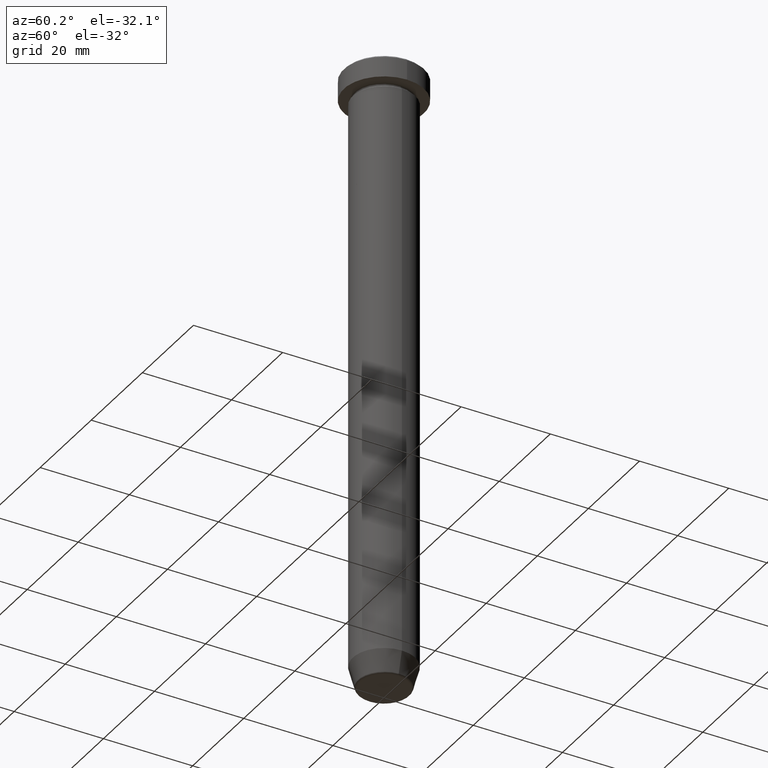
[diagram: clean part render]
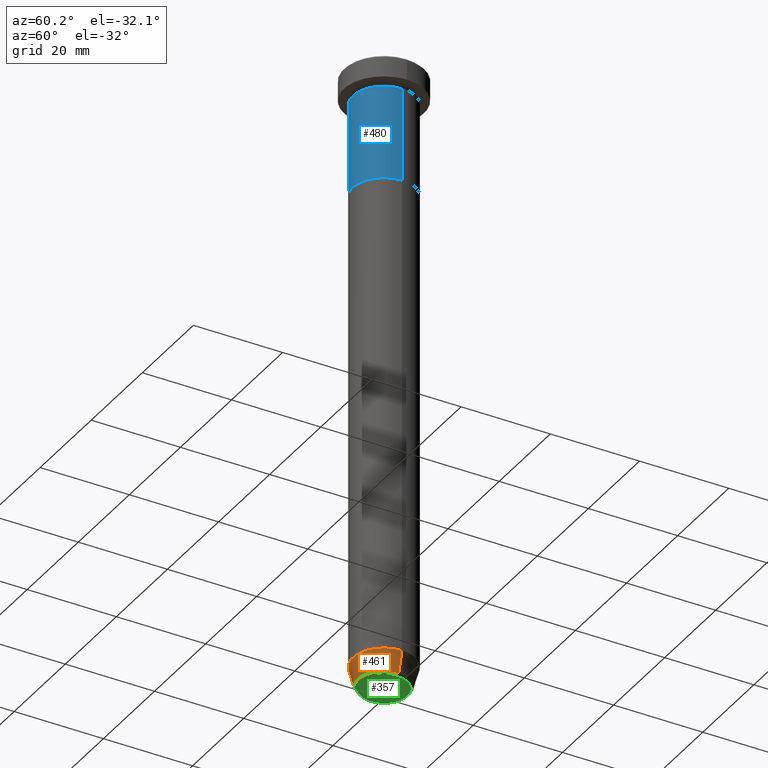
[diagram: same view with three faces highlighted in distinct colors, each labeled with its STEP entity id]
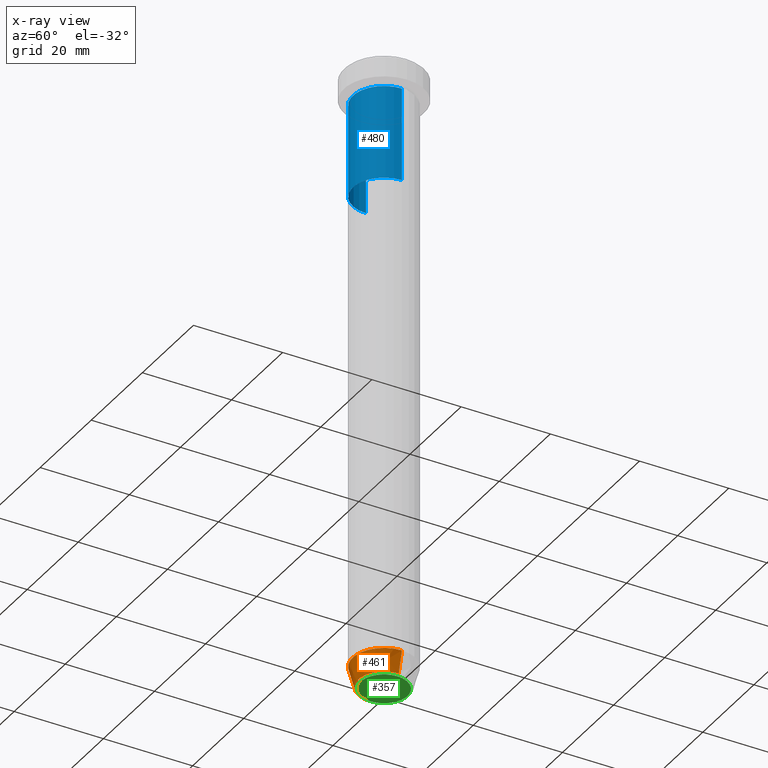
[diagram: x-ray of the same camera — body ghosted, the three highlighted faces saturated]
A machine part, auxiliary view with three faces highlighted in distinct colors.
The next image is the same camera in x-ray (body ghosted, the three faces saturated) — at least one of them is partly hidden behind the body in this view.
Their STEP definitions:

[orange] entity #461 — the highlighted conical surface has half-angle 15 deg.
#53 = DIRECTION ( 'NONE',  ( -1.000000000000000000, 0.000000000000000000, 0.000000000000000000 ) ) ;
#77 = VERTEX_POINT ( 'NONE', #559 ) ;
#79 = AXIS2_PLACEMENT_3D ( 'NONE', #122, #515, #53 ) ;
#82 = CARTESIAN_POINT ( 'NONE',  ( -7.000000000000000000, 8.572527594031473190E-16, -135.0000000000000000 ) ) ;
#90 = DIRECTION ( 'NONE',  ( -0.000000000000000000, -0.000000000000000000, 1.000000000000000000 ) ) ;
#100 = ORIENTED_EDGE ( 'NONE', *, *, #370, .F. ) ;
#122 = CARTESIAN_POINT ( 'NONE',  ( 0.000000000000000000, 0.000000000000000000, -139.6294095225512706 ) ) ;
#139 = EDGE_CURVE ( 'NONE', #77, #423, #512, .T. ) ;
#144 = CARTESIAN_POINT ( 'NONE',  ( 0.000000000000000000, 0.000000000000000000, -140.0000000000000000 ) ) ;
#146 = DIRECTION ( 'NONE',  ( 1.000000000000000000, 0.000000000000000000, 0.000000000000000000 ) ) ;
#149 = CARTESIAN_POINT ( 'NONE',  ( -5.660254037844381969, 6.931811989807004350E-16, -140.0000000000000000 ) ) ;
#180 = EDGE_LOOP ( 'NONE', ( #196, #248, #510, #100 ) ) ;
#181 = EDGE_CURVE ( 'NONE', #321, #77, #417, .T. ) ;
#193 = DIRECTION ( 'NONE',  ( 0.2588190451025213501, 0.000000000000000000, 0.9659258262890680902 ) ) ;
#196 = ORIENTED_EDGE ( 'NONE', *, *, #322, .F. ) ;
#220 = DIRECTION ( 'NONE',  ( 1.000000000000000000, 0.000000000000000000, 0.000000000000000000 ) ) ;
#248 = ORIENTED_EDGE ( 'NONE', *, *, #181, .T. ) ;
#267 = LINE ( 'NONE', #149, #317 ) ;
#273 = DIRECTION ( 'NONE',  ( -0.000000000000000000, -0.000000000000000000, 1.000000000000000000 ) ) ;
#314 = CARTESIAN_POINT ( 'NONE',  ( 5.660254037844381969, 0.000000000000000000, -140.0000000000000000 ) ) ;
#317 = VECTOR ( 'NONE', #588, 1000.000000000000000 ) ;
#321 = VERTEX_POINT ( 'NONE', #362 ) ;
#322 = EDGE_CURVE ( 'NONE', #321, #463, #267, .T. ) ;
#337 = VECTOR ( 'NONE', #193, 1000.000000000000000 ) ;
#349 = AXIS2_PLACEMENT_3D ( 'NONE', #447, #90, #220 ) ;
#362 = CARTESIAN_POINT ( 'NONE',  ( -5.759553456999436882, 7.812973149831951773E-16, -139.6294095225512706 ) ) ;
#363 = CONICAL_SURFACE ( 'NONE', #532, 5.660254037844381969, 0.2617993877991500740 ) ;
#370 = EDGE_CURVE ( 'NONE', #463, #423, #544, .T. ) ;
#378 = CARTESIAN_POINT ( 'NONE',  ( 7.000000000000000000, 0.000000000000000000, -135.0000000000000000 ) ) ;
#417 = CIRCLE ( 'NONE', #79, 5.759553456999436882 ) ;
#423 = VERTEX_POINT ( 'NONE', #378 ) ;
#447 = CARTESIAN_POINT ( 'NONE',  ( 0.000000000000000000, 0.000000000000000000, -135.0000000000000000 ) ) ;
#461 = ADVANCED_FACE ( 'NONE', ( #539 ), #363, .T. ) ;
#463 = VERTEX_POINT ( 'NONE', #82 ) ;
#510 = ORIENTED_EDGE ( 'NONE', *, *, #139, .T. ) ;
#512 = LINE ( 'NONE', #314, #337 ) ;
#515 = DIRECTION ( 'NONE',  ( -0.000000000000000000, -0.000000000000000000, 1.000000000000000000 ) ) ;
#532 = AXIS2_PLACEMENT_3D ( 'NONE', #144, #273, #146 ) ;
#539 = FACE_OUTER_BOUND ( 'NONE', #180, .T. ) ;
#544 = CIRCLE ( 'NONE', #349, 7.000000000000000000 ) ;
#559 = CARTESIAN_POINT ( 'NONE',  ( 5.759553456999436882, 0.000000000000000000, -139.6294095225512706 ) ) ;
#588 = DIRECTION ( 'NONE',  ( -0.2588190451025213501, 3.169619151431772337E-17, 0.9659258262890680902 ) ) ;

[blue] entity #480 — the highlighted cylindrical surface (edge-blend (fillet) strip) has radius 7 mm, axis along (-0, -0, 1).
#12 = DIRECTION ( 'NONE',  ( 1.000000000000000000, 0.000000000000000000, 0.000000000000000000 ) ) ;
#15 = AXIS2_PLACEMENT_3D ( 'NONE', #404, #309, #76 ) ;
#28 = DIRECTION ( 'NONE',  ( -0.000000000000000000, -0.000000000000000000, 1.000000000000000000 ) ) ;
#40 = EDGE_CURVE ( 'NONE', #351, #410, #380, .T. ) ;
#43 = VERTEX_POINT ( 'NONE', #201 ) ;
#52 = CARTESIAN_POINT ( 'NONE',  ( 0.000000000000000000, 0.000000000000000000, -27.00000000000000000 ) ) ;
#76 = DIRECTION ( 'NONE',  ( 1.000000000000000000, 0.000000000000000000, 0.000000000000000000 ) ) ;
#88 = FACE_OUTER_BOUND ( 'NONE', #554, .T. ) ;
#121 = EDGE_CURVE ( 'NONE', #351, #43, #579, .T. ) ;
#128 = VECTOR ( 'NONE', #28, 1000.000000000000000 ) ;
#135 = CARTESIAN_POINT ( 'NONE',  ( -7.000000000000000000, 8.572527594031473190E-16, 0.000000000000000000 ) ) ;
#201 = CARTESIAN_POINT ( 'NONE',  ( -7.000000000000000000, 8.572527594031473190E-16, -6.000000000000000000 ) ) ;
#231 = AXIS2_PLACEMENT_3D ( 'NONE', #491, #398, #358 ) ;
#245 = DIRECTION ( 'NONE',  ( -0.000000000000000000, -0.000000000000000000, 1.000000000000000000 ) ) ;
#252 = AXIS2_PLACEMENT_3D ( 'NONE', #52, #245, #12 ) ;
#306 = CARTESIAN_POINT ( 'NONE',  ( 7.000000000000000000, 0.000000000000000000, 0.000000000000000000 ) ) ;
#309 = DIRECTION ( 'NONE',  ( -0.000000000000000000, -0.000000000000000000, 1.000000000000000000 ) ) ;
#316 = CIRCLE ( 'NONE', #231, 7.000000000000000000 ) ;
#320 = ORIENTED_EDGE ( 'NONE', *, *, #40, .T. ) ;
#338 = ORIENTED_EDGE ( 'NONE', *, *, #432, .T. ) ;
#351 = VERTEX_POINT ( 'NONE', #504 ) ;
#353 = LINE ( 'NONE', #306, #128 ) ;
#354 = CYLINDRICAL_SURFACE ( 'NONE', #15, 7.000000000000000000 ) ;
#358 = DIRECTION ( 'NONE',  ( 1.000000000000000000, 0.000000000000000000, 0.000000000000000000 ) ) ;
#360 = CARTESIAN_POINT ( 'NONE',  ( 7.000000000000000000, 0.000000000000000000, -6.000000000000000000 ) ) ;
#380 = CIRCLE ( 'NONE', #252, 7.000000000000000000 ) ;
#386 = EDGE_CURVE ( 'NONE', #43, #455, #316, .T. ) ;
#391 = VECTOR ( 'NONE', #537, 1000.000000000000000 ) ;
#398 = DIRECTION ( 'NONE',  ( -0.000000000000000000, -0.000000000000000000, 1.000000000000000000 ) ) ;
#404 = CARTESIAN_POINT ( 'NONE',  ( 0.000000000000000000, 0.000000000000000000, 0.000000000000000000 ) ) ;
#410 = VERTEX_POINT ( 'NONE', #431 ) ;
#431 = CARTESIAN_POINT ( 'NONE',  ( 7.000000000000000000, 0.000000000000000000, -27.00000000000000000 ) ) ;
#432 = EDGE_CURVE ( 'NONE', #410, #455, #353, .T. ) ;
#455 = VERTEX_POINT ( 'NONE', #360 ) ;
#480 = ADVANCED_FACE ( 'NONE', ( #88 ), #354, .T. ) ;
#491 = CARTESIAN_POINT ( 'NONE',  ( 0.000000000000000000, 0.000000000000000000, -6.000000000000000000 ) ) ;
#499 = ORIENTED_EDGE ( 'NONE', *, *, #386, .F. ) ;
#504 = CARTESIAN_POINT ( 'NONE',  ( -7.000000000000000000, 8.572527594031473190E-16, -27.00000000000000000 ) ) ;
#537 = DIRECTION ( 'NONE',  ( -0.000000000000000000, -0.000000000000000000, 1.000000000000000000 ) ) ;
#554 = EDGE_LOOP ( 'NONE', ( #592, #320, #338, #499 ) ) ;
#579 = LINE ( 'NONE', #135, #391 ) ;
#592 = ORIENTED_EDGE ( 'NONE', *, *, #121, .F. ) ;

[green] entity #357 — the highlighted planar face has unit normal (0, -0, 1).
#4 = VERTEX_POINT ( 'NONE', #567 ) ;
#81 = EDGE_CURVE ( 'NONE', #315, #4, #208, .T. ) ;
#84 = PLANE ( 'NONE',  #137 ) ;
#120 = DIRECTION ( 'NONE',  ( 0.000000000000000000, 0.000000000000000000, -1.000000000000000000 ) ) ;
#137 = AXIS2_PLACEMENT_3D ( 'NONE', #185, #534, #538 ) ;
#176 = ORIENTED_EDGE ( 'NONE', *, *, #81, .T. ) ;
#182 = DIRECTION ( 'NONE',  ( 1.000000000000000000, 0.000000000000000000, 0.000000000000000000 ) ) ;
#185 = CARTESIAN_POINT ( 'NONE',  ( 0.000000000000000000, 1.102182119232618069E-14, -140.0000000000000000 ) ) ;
#192 = CARTESIAN_POINT ( 'NONE',  ( -5.276590543854905668, 6.757689212787771832E-16, -140.0000000000000000 ) ) ;
#197 = EDGE_LOOP ( 'NONE', ( #241, #176 ) ) ;
#206 = CARTESIAN_POINT ( 'NONE',  ( 0.000000000000000000, 0.000000000000000000, -140.0000000000000000 ) ) ;
#208 = CIRCLE ( 'NONE', #433, 5.276590543854905668 ) ;
#241 = ORIENTED_EDGE ( 'NONE', *, *, #529, .T. ) ;
#297 = DIRECTION ( 'NONE',  ( 1.000000000000000000, 0.000000000000000000, 0.000000000000000000 ) ) ;
#315 = VERTEX_POINT ( 'NONE', #192 ) ;
#357 = ADVANCED_FACE ( 'NONE', ( #493 ), #84, .F. ) ;
#414 = DIRECTION ( 'NONE',  ( 0.000000000000000000, 0.000000000000000000, -1.000000000000000000 ) ) ;
#433 = AXIS2_PLACEMENT_3D ( 'NONE', #206, #414, #182 ) ;
#446 = CIRCLE ( 'NONE', #496, 5.276590543854905668 ) ;
#493 = FACE_OUTER_BOUND ( 'NONE', #197, .T. ) ;
#496 = AXIS2_PLACEMENT_3D ( 'NONE', #520, #120, #297 ) ;
#520 = CARTESIAN_POINT ( 'NONE',  ( 0.000000000000000000, 0.000000000000000000, -140.0000000000000000 ) ) ;
#529 = EDGE_CURVE ( 'NONE', #4, #315, #446, .T. ) ;
#534 = DIRECTION ( 'NONE',  ( 0.000000000000000000, -0.000000000000000000, 1.000000000000000000 ) ) ;
#538 = DIRECTION ( 'NONE',  ( 1.000000000000000000, 0.000000000000000000, 0.000000000000000000 ) ) ;
#567 = CARTESIAN_POINT ( 'NONE',  ( 5.276590543854905668, 0.000000000000000000, -140.0000000000000000 ) ) ;